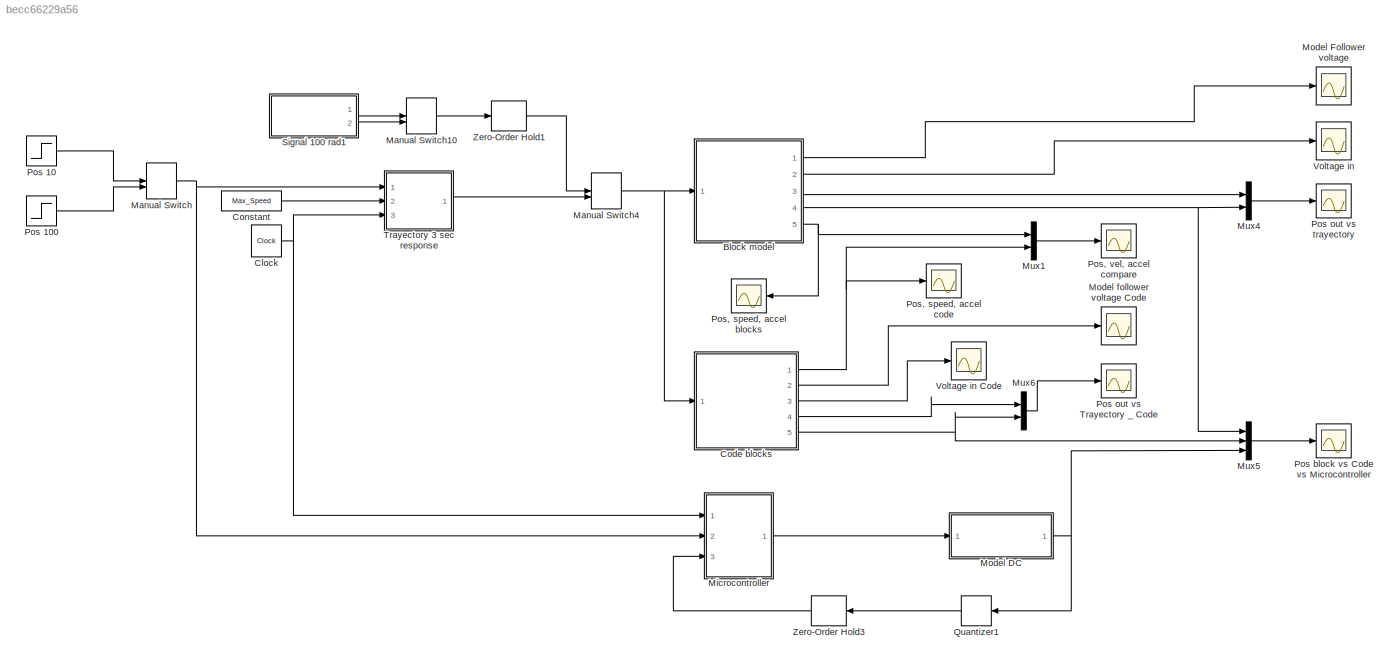
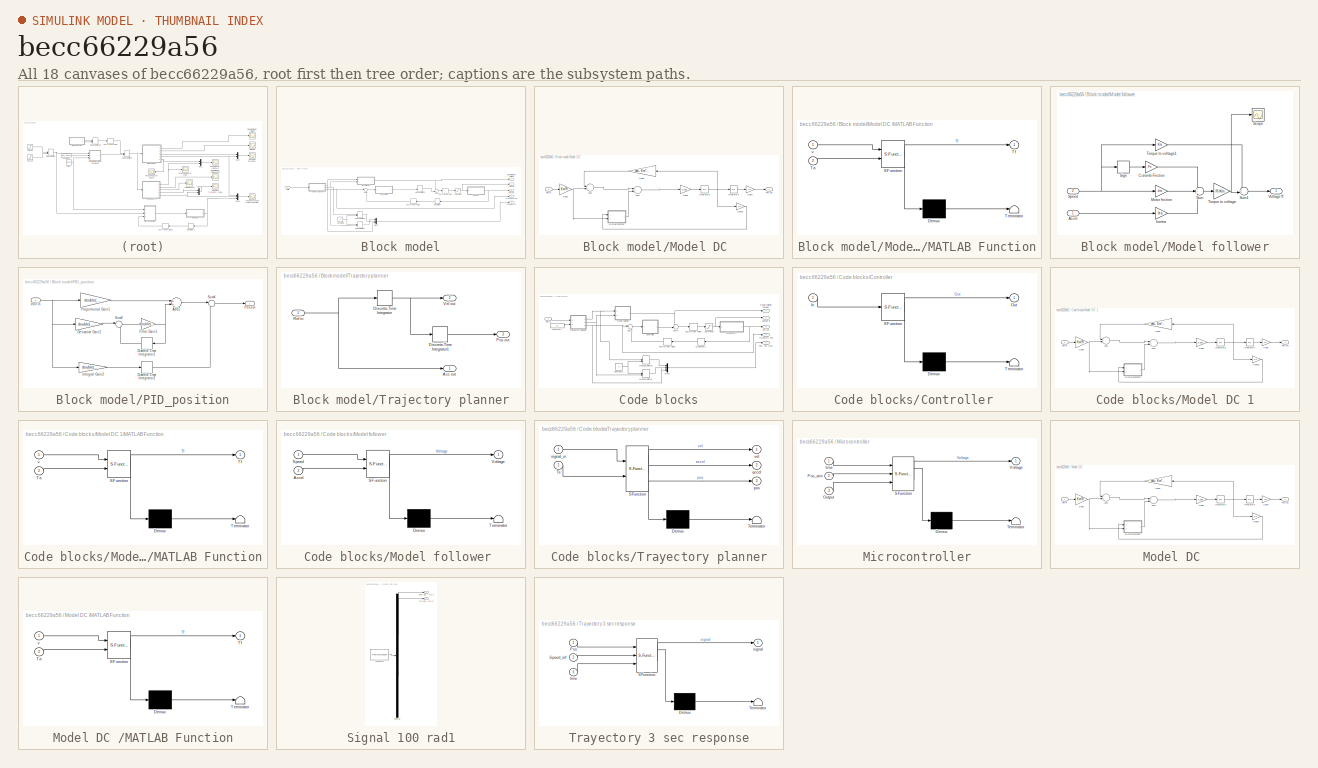
[diagram: thumbnail index - all 18 canvases of the model, root first then tree order]
MODEL slx_becc66229a56
KIND model
CONFIG AbsTol = auto
CONFIG EnableMultiTasking = off
CONFIG FixedStep = auto
CONFIG MaxStep = auto
CONFIG MinStep = auto
CONFIG RelTol = 1e-3
CONFIG SampleTimeConstraint = Unconstrained
CONFIG Solver = ode45
CONFIG SolverName = ode45
CONFIG StartTime = 0.0
CONFIG StopTime = 2
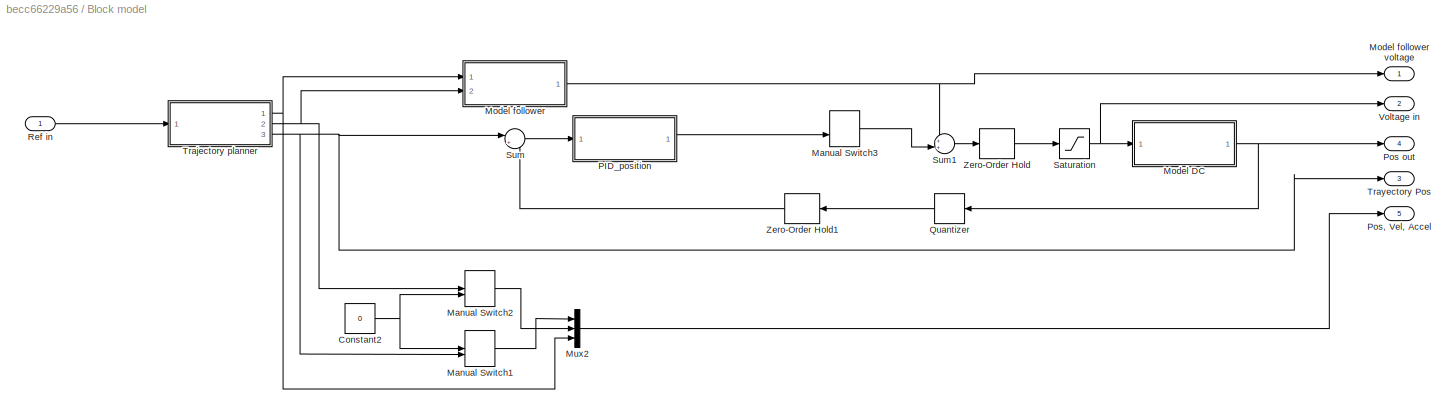
BLOCK [SubSystem] Block model
  Ports = [1, 5]
  RequestExecContextInheritance = off
  Variant = off
BLOCK [Constant] Block model/Constant2
  Value = 0
BLOCK [ManualSwitch] Block model/Manual Switch1
  CurrentSetting = 0
BLOCK [ManualSwitch] Block model/Manual Switch2
BLOCK [ManualSwitch] Block model/Manual Switch3
  CurrentSetting = 0
BLOCK [SubSystem] Block model/Model DC 
  Ports = [1, 1]
  RequestExecContextInheritance = off
  Variant = off
BLOCK [Sum] Block model/Model DC /Add2
  InputSameDT = off
  Inputs = -+
  OutDataTypeStr = Inherit: Inherit via internal rule
  Ports = [2, 1]
  SaturateOnIntegerOverflow = off
BLOCK [Sum] Block model/Model DC /Add3
  InputSameDT = off
  Inputs = +-
  OutDataTypeStr = Inherit: Inherit via internal rule
  Ports = [2, 1]
  SaturateOnIntegerOverflow = off
BLOCK [Gain] Block model/Model DC /Gain10
  Gain = 1/n
  OutDataTypeStr = Inherit: Inherit via internal rule
  ParamDataTypeStr = Inherit: Inherit via internal rule
  SaturateOnIntegerOverflow = off
BLOCK [Gain] Block model/Model DC /Gain2
  Gain = Km/R
  OutDataTypeStr = Inherit: Inherit via internal rule
  ParamDataTypeStr = Inherit: Inherit via internal rule
  SaturateOnIntegerOverflow = off
BLOCK [Gain] Block model/Model DC /Gain3
  Gain = dm+ Km*Kemf/R
  OutDataTypeStr = Inherit: Inherit via internal rule
  ParamDataTypeStr = Inherit: Inherit via internal rule
  SaturateOnIntegerOverflow = off
BLOCK [Gain] Block model/Model DC /Gain5
  Gain = 1/Jeq
  OutDataTypeStr = Inherit: Inherit via internal rule
  ParamDataTypeStr = Inherit: Inherit via internal rule
  SaturateOnIntegerOverflow = off
BLOCK [Gain] Block model/Model DC /Gain9
  Gain = 1/n
  OutDataTypeStr = Inherit: Inherit via internal rule
  ParamDataTypeStr = Inherit: Inherit via internal rule
  SaturateOnIntegerOverflow = off
BLOCK [Integrator] Block model/Model DC /Integrator3
  Ports = [1, 1]
BLOCK [Integrator] Block model/Model DC /Integrator4
  Ports = [1, 1]
BLOCK [SubSystem] Block model/Model DC /MATLAB Function
  ErrorFcn = Stateflow.Translate.translate
  PermitHierarchicalResolution = ExplicitOnly
  Ports = [2, 1]
  RequestExecContextInheritance = off
  SFBlockType = MATLAB Function
  TreatAsAtomicUnit = on
  Variant = off
BLOCK [Demux] Block model/Model DC /MATLAB Function/ Demux 
  Outputs = 1
  Ports = [1, 1]
BLOCK [S-Function] Block model/Model DC /MATLAB Function/ SFunction 
  EnableBusSupport = on
  FunctionName = sf_sfun
  PortCounts = [2 2]
  Ports = [2, 2]
  SFcnIsStateOwnerBlock = off
  SFunctionDeploymentMode = off
  Tag = Stateflow S-Function WorkshopB_1_Code 2
BLOCK [Terminator] Block model/Model DC /MATLAB Function/ Terminator 
BLOCK [Inport] Block model/Model DC /MATLAB Function/Ta
  IconDisplay = Port number
  Port = 2
BLOCK [Outport] Block model/Model DC /MATLAB Function/Tf
  IconDisplay = Port number
BLOCK [Inport] Block model/Model DC /MATLAB Function/v
  IconDisplay = Port number
BLOCK [Outport] Block model/Model DC /Pos out
  IconDisplay = Port number
BLOCK [Inport] Block model/Model DC /Volt in 
  IconDisplay = Port number
BLOCK [SubSystem] Block model/Model follower
  Ports = [2, 1]
  RequestExecContextInheritance = off
  Variant = off
BLOCK [Outport] Block model/Model follower voltage
  IconDisplay = Port number
BLOCK [Inport] Block model/Model follower/Accel
  IconDisplay = Port number
BLOCK [Gain] Block model/Model follower/Culomb Friction
  Gain = Fc
  OutDataTypeStr = Inherit: Inherit via internal rule
  ParamDataTypeStr = Inherit: Inherit via internal rule
  SaturateOnIntegerOverflow = off
BLOCK [Gain] Block model/Model follower/Inertia 
  Gain = Jeq
  OutDataTypeStr = Inherit: Inherit via internal rule
  ParamDataTypeStr = Inherit: Inherit via internal rule
  SaturateOnIntegerOverflow = off
BLOCK [Gain] Block model/Model follower/Motor friction
  Gain = dm
  OutDataTypeStr = Inherit: Inherit via internal rule
  ParamDataTypeStr = Inherit: Inherit via internal rule
  SaturateOnIntegerOverflow = off
BLOCK [Scope] Block model/Model follower/Scope
  NumInputPorts = 1
  Ports = [1]
  ScopeSpecificationString = Simulink.scopes.TimeScopeBlockCfg('CurrentConfiguration', extmgr.ConfigurationSet(extmgr.Configuration('Core','General UI',true),extmgr.Configuration('Core','Source UI',true),extmgr.Configuration('Sources','WiredSimulink',true,'DataLoggingVariableName','ScopeData5','DataLoggingLimitDataPoints',true,'DataLoggingSaveFormat','Array','DataLoggingDecimation','1','DataLoggingDecimateData',true),extmgr.C...<+899ch>
BLOCK [Signum] Block model/Model follower/Sign
BLOCK [Inport] Block model/Model follower/Speed
  IconDisplay = Port number
  Port = 2
BLOCK [Sum] Block model/Model follower/Sum
  IconShape = round
  InputSameDT = off
  Inputs = +++
  OutDataTypeStr = Inherit: Inherit via internal rule
  Ports = [3, 1]
  SaturateOnIntegerOverflow = off
BLOCK [Sum] Block model/Model follower/Sum1
  IconShape = round
  InputSameDT = off
  Inputs = ++|
  OutDataTypeStr = Inherit: Inherit via internal rule
  Ports = [2, 1]
  SaturateOnIntegerOverflow = off
BLOCK [Gain] Block model/Model follower/Torque to voltage
  Gain = R/Km
  OutDataTypeStr = Inherit: Inherit via internal rule
  ParamDataTypeStr = Inherit: Inherit via internal rule
  SaturateOnIntegerOverflow = off
BLOCK [Gain] Block model/Model follower/Torque to voltage1
  Gain = Km
  OutDataTypeStr = Inherit: Inherit via internal rule
  ParamDataTypeStr = Inherit: Inherit via internal rule
  SaturateOnIntegerOverflow = off
BLOCK [Outport] Block model/Model follower/Voltage ff
  IconDisplay = Port number
BLOCK [Mux] Block model/Mux2
  DisplayOption = bar
  Inputs = 3
  Ports = [3, 1]
BLOCK [SubSystem] Block model/PID_position
  Ports = [1, 1]
  RequestExecContextInheritance = off
  Variant = off
BLOCK [Sum] Block model/PID_position/Add2
  InputSameDT = off
  OutDataTypeStr = Inherit: Inherit via internal rule
  Ports = [2, 1]
  SaturateOnIntegerOverflow = off
BLOCK [Gain] Block model/PID_position/Derivative Gain2
  Gain = double(Dpos)
  OutDataTypeStr = Inherit: Inherit via internal rule
  ParamDataTypeStr = Inherit: Inherit via internal rule
  SaturateOnIntegerOverflow = off
BLOCK [DiscreteIntegrator] Block model/PID_position/Discrete-Time Integrator1
  ICPrevOutput = DiscIntNeverNeededParam
  ICPrevScaledInput = DiscIntNeverNeededParam
  InitialConditionSetting = State (most efficient)
  Ports = [1, 1]
  SampleTime = Ts
BLOCK [DiscreteIntegrator] Block model/PID_position/Discrete-Time Integrator2
  ICPrevOutput = DiscIntNeverNeededParam
  ICPrevScaledInput = DiscIntNeverNeededParam
  InitialConditionSetting = State (most efficient)
  Ports = [1, 1]
  SampleTime = Ts
BLOCK [Gain] Block model/PID_position/Filter Gain1
  Gain = double(Npos)
  OutDataTypeStr = Inherit: Inherit via internal rule
  ParamDataTypeStr = Inherit: Inherit via internal rule
  SaturateOnIntegerOverflow = off
BLOCK [Gain] Block model/PID_position/Integral Gain2
  Gain = double(Ipos)
  OutDataTypeStr = Inherit: Inherit via internal rule
  ParamDataTypeStr = Inherit: Inherit via internal rule
  SaturateOnIntegerOverflow = off
BLOCK [Outport] Block model/PID_position/Pos out
  IconDisplay = Port number
BLOCK [Gain] Block model/PID_position/Proportional Gain1
  Gain = double(Ppos)
  OutDataTypeStr = Inherit: Inherit via internal rule
  ParamDataTypeStr = Inherit: Inherit via internal rule
  SaturateOnIntegerOverflow = off
BLOCK [Sum] Block model/PID_position/Sum2
  IconShape = round
  InputSameDT = off
  Inputs = |+-
  OutDataTypeStr = Inherit: Inherit via internal rule
  Ports = [2, 1]
  SaturateOnIntegerOverflow = off
BLOCK [Sum] Block model/PID_position/Sum4
  IconShape = round
  InputSameDT = off
  Inputs = |++
  OutDataTypeStr = Inherit: Inherit via internal rule
  Ports = [2, 1]
  SaturateOnIntegerOverflow = off
BLOCK [Inport] Block model/PID_position/Volt in
  IconDisplay = Port number
BLOCK [Outport] Block model/Pos out 
  IconDisplay = Port number
  Port = 4
BLOCK [Outport] Block model/Pos, Vel, Accel 
  IconDisplay = Port number
  Port = 5
BLOCK [Quantizer] Block model/Quantizer
  QuantizationInterval = Pulses
  SampleTime = Ts
BLOCK [Inport] Block model/Ref in
  IconDisplay = Port number
BLOCK [Saturate] Block model/Saturation
  InputPortMap = u0
  LowerLimit = -24
  Ports = [1, 1]
  UpperLimit = 24
BLOCK [Sum] Block model/Sum
  IconShape = round
  InputSameDT = off
  Inputs = |+-
  OutDataTypeStr = Inherit: Inherit via internal rule
  Ports = [2, 1]
  SaturateOnIntegerOverflow = off
BLOCK [Sum] Block model/Sum1
  IconShape = round
  InputSameDT = off
  Inputs = ++|
  OutDataTypeStr = Inherit: Inherit via internal rule
  Ports = [2, 1]
  SaturateOnIntegerOverflow = off
BLOCK [SubSystem] Block model/Trajectory planner
  Ports = [1, 3]
  RequestExecContextInheritance = off
  Variant = off
BLOCK [Outport] Block model/Trajectory planner/Acc out 
  IconDisplay = Port number
BLOCK [DiscreteIntegrator] Block model/Trajectory planner/Discrete-Time Integrator
  ICPrevOutput = DiscIntNeverNeededParam
  ICPrevScaledInput = DiscIntNeverNeededParam
  InitialConditionSetting = State (most efficient)
  Ports = [1, 1]
  SampleTime = Ts
BLOCK [DiscreteIntegrator] Block model/Trajectory planner/Discrete-Time Integrator1
  ICPrevOutput = DiscIntNeverNeededParam
  ICPrevScaledInput = DiscIntNeverNeededParam
  InitialConditionSetting = State (most efficient)
  Ports = [1, 1]
  SampleTime = Ts
BLOCK [Outport] Block model/Trajectory planner/Pos out 
  IconDisplay = Port number
  Port = 3
BLOCK [Inport] Block model/Trajectory planner/Ref in
  IconDisplay = Port number
BLOCK [Outport] Block model/Trajectory planner/Vel out
  IconDisplay = Port number
  Port = 2
BLOCK [Outport] Block model/Trayectory Pos
  IconDisplay = Port number
  Port = 3
BLOCK [Outport] Block model/Voltage in
  IconDisplay = Port number
  Port = 2
BLOCK [ZeroOrderHold] Block model/Zero-Order Hold
  SampleTime = Ts
BLOCK [ZeroOrderHold] Block model/Zero-Order Hold1
  SampleTime = Ts
BLOCK [Clock] Clock
  Decimation = 1
  DisplayTime = on
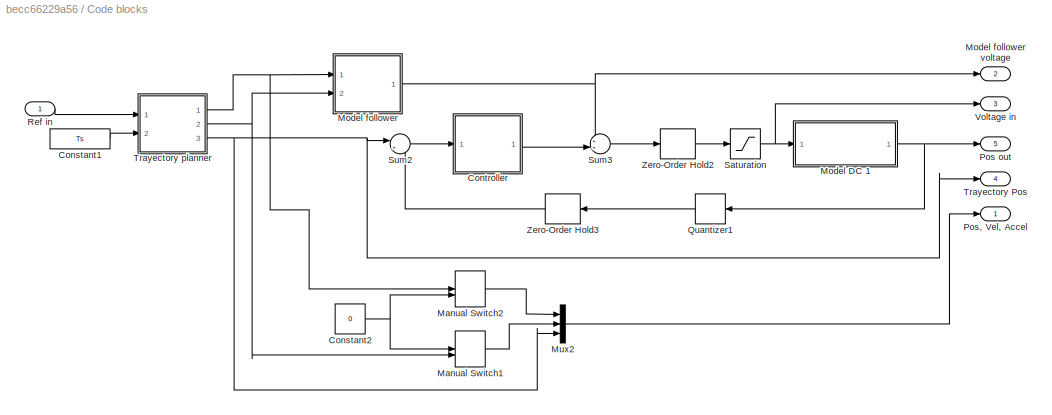
BLOCK [SubSystem] Code blocks
  Ports = [1, 5]
  RequestExecContextInheritance = off
  Variant = off
BLOCK [Constant] Code blocks/Constant1
  Value = Ts
BLOCK [Constant] Code blocks/Constant2
  Value = 0
BLOCK [SubSystem] Code blocks/Controller 
  ErrorFcn = Stateflow.Translate.translate
  PermitHierarchicalResolution = ExplicitOnly
  Ports = [1, 1]
  RequestExecContextInheritance = off
  SFBlockType = MATLAB Function
  SystemSampleTime = Ts
  TreatAsAtomicUnit = on
  Variant = off
BLOCK [Demux] Code blocks/Controller / Demux 
  Outputs = 1
  Ports = [1, 1]
BLOCK [S-Function] Code blocks/Controller / SFunction 
  EnableBusSupport = on
  FunctionName = sf_sfun
  PortCounts = [1 2]
  Ports = [1, 2]
  SFcnIsStateOwnerBlock = off
  SFunctionDeploymentMode = off
  Tag = Stateflow S-Function WorkshopB_1_Code 3
BLOCK [Terminator] Code blocks/Controller / Terminator 
BLOCK [Inport] Code blocks/Controller /In
  IconDisplay = Port number
BLOCK [Outport] Code blocks/Controller /Out
  IconDisplay = Port number
BLOCK [ManualSwitch] Code blocks/Manual Switch1
  CurrentSetting = 0
BLOCK [ManualSwitch] Code blocks/Manual Switch2
BLOCK [SubSystem] Code blocks/Model DC 1
  Ports = [1, 1]
  RequestExecContextInheritance = off
  Variant = off
BLOCK [Sum] Code blocks/Model DC 1/Add2
  InputSameDT = off
  Inputs = -+
  OutDataTypeStr = Inherit: Inherit via internal rule
  Ports = [2, 1]
  SaturateOnIntegerOverflow = off
BLOCK [Sum] Code blocks/Model DC 1/Add3
  InputSameDT = off
  Inputs = +-
  OutDataTypeStr = Inherit: Inherit via internal rule
  Ports = [2, 1]
  SaturateOnIntegerOverflow = off
BLOCK [Gain] Code blocks/Model DC 1/Gain10
  Gain = 1/n
  OutDataTypeStr = Inherit: Inherit via internal rule
  ParamDataTypeStr = Inherit: Inherit via internal rule
  SaturateOnIntegerOverflow = off
BLOCK [Gain] Code blocks/Model DC 1/Gain2
  Gain = Km/R
  OutDataTypeStr = Inherit: Inherit via internal rule
  ParamDataTypeStr = Inherit: Inherit via internal rule
  SaturateOnIntegerOverflow = off
BLOCK [Gain] Code blocks/Model DC 1/Gain3
  Gain = dm+ Km*Kemf/R
  OutDataTypeStr = Inherit: Inherit via internal rule
  ParamDataTypeStr = Inherit: Inherit via internal rule
  SaturateOnIntegerOverflow = off
BLOCK [Gain] Code blocks/Model DC 1/Gain5
  Gain = 1/Jeq
  OutDataTypeStr = Inherit: Inherit via internal rule
  ParamDataTypeStr = Inherit: Inherit via internal rule
  SaturateOnIntegerOverflow = off
BLOCK [Gain] Code blocks/Model DC 1/Gain9
  Gain = 1/n
  OutDataTypeStr = Inherit: Inherit via internal rule
  ParamDataTypeStr = Inherit: Inherit via internal rule
  SaturateOnIntegerOverflow = off
BLOCK [Integrator] Code blocks/Model DC 1/Integrator3
  Ports = [1, 1]
BLOCK [Integrator] Code blocks/Model DC 1/Integrator4
  Ports = [1, 1]
BLOCK [SubSystem] Code blocks/Model DC 1/MATLAB Function
  ErrorFcn = Stateflow.Translate.translate
  PermitHierarchicalResolution = ExplicitOnly
  Ports = [2, 1]
  RequestExecContextInheritance = off
  SFBlockType = MATLAB Function
  TreatAsAtomicUnit = on
  Variant = off
BLOCK [Demux] Code blocks/Model DC 1/MATLAB Function/ Demux 
  Outputs = 1
  Ports = [1, 1]
BLOCK [S-Function] Code blocks/Model DC 1/MATLAB Function/ SFunction 
  EnableBusSupport = on
  FunctionName = sf_sfun
  PortCounts = [2 2]
  Ports = [2, 2]
  SFcnIsStateOwnerBlock = off
  SFunctionDeploymentMode = off
  Tag = Stateflow S-Function WorkshopB_1_Code 8
BLOCK [Terminator] Code blocks/Model DC 1/MATLAB Function/ Terminator 
BLOCK [Inport] Code blocks/Model DC 1/MATLAB Function/Ta
  IconDisplay = Port number
  Port = 2
BLOCK [Outport] Code blocks/Model DC 1/MATLAB Function/Tf
  IconDisplay = Port number
BLOCK [Inport] Code blocks/Model DC 1/MATLAB Function/v
  IconDisplay = Port number
BLOCK [Outport] Code blocks/Model DC 1/Pos out
  IconDisplay = Port number
BLOCK [Inport] Code blocks/Model DC 1/Volt in 
  IconDisplay = Port number
BLOCK [SubSystem] Code blocks/Model follower 
  ErrorFcn = Stateflow.Translate.translate
  PermitHierarchicalResolution = ExplicitOnly
  Ports = [2, 1]
  RequestExecContextInheritance = off
  SFBlockType = MATLAB Function
  SystemSampleTime = Ts
  TreatAsAtomicUnit = on
  Variant = off
BLOCK [Demux] Code blocks/Model follower / Demux 
  Outputs = 1
  Ports = [1, 1]
BLOCK [S-Function] Code blocks/Model follower / SFunction 
  EnableBusSupport = on
  FunctionName = sf_sfun
  PortCounts = [2 2]
  Ports = [2, 2]
  SFcnIsStateOwnerBlock = off
  SFunctionDeploymentMode = off
  Tag = Stateflow S-Function WorkshopB_1_Code 9
BLOCK [Terminator] Code blocks/Model follower / Terminator 
BLOCK [Inport] Code blocks/Model follower /Accel
  IconDisplay = Port number
  Port = 2
BLOCK [Inport] Code blocks/Model follower /Speed
  IconDisplay = Port number
BLOCK [Outport] Code blocks/Model follower /Voltage
  IconDisplay = Port number
BLOCK [Outport] Code blocks/Model follower voltage
  IconDisplay = Port number
  Port = 2
BLOCK [Mux] Code blocks/Mux2
  DisplayOption = bar
  Inputs = 3
  Ports = [3, 1]
BLOCK [Outport] Code blocks/Pos out 
  IconDisplay = Port number
  Port = 5
BLOCK [Outport] Code blocks/Pos, Vel, Accel 
  IconDisplay = Port number
BLOCK [Quantizer] Code blocks/Quantizer1
  QuantizationInterval = Pulses
  SampleTime = Ts
BLOCK [Inport] Code blocks/Ref in
  IconDisplay = Port number
BLOCK [Saturate] Code blocks/Saturation
  InputPortMap = u0
  LowerLimit = -24
  Ports = [1, 1]
  UpperLimit = 24
BLOCK [Sum] Code blocks/Sum2
  IconShape = round
  InputSameDT = off
  Inputs = |+-
  OutDataTypeStr = Inherit: Inherit via internal rule
  Ports = [2, 1]
  SaturateOnIntegerOverflow = off
BLOCK [Sum] Code blocks/Sum3
  IconShape = round
  InputSameDT = off
  Inputs = ++|
  OutDataTypeStr = Inherit: Inherit via internal rule
  Ports = [2, 1]
  SaturateOnIntegerOverflow = off
BLOCK [Outport] Code blocks/Trayectory Pos
  IconDisplay = Port number
  Port = 4
BLOCK [SubSystem] Code blocks/Trayectory planner
  ErrorFcn = Stateflow.Translate.translate
  PermitHierarchicalResolution = ExplicitOnly
  Ports = [2, 3]
  RequestExecContextInheritance = off
  SFBlockType = MATLAB Function
  SystemSampleTime = Ts
  TreatAsAtomicUnit = on
  Variant = off
BLOCK [Demux] Code blocks/Trayectory planner/ Demux 
  Outputs = 1
  Ports = [1, 1]
BLOCK [S-Function] Code blocks/Trayectory planner/ SFunction 
  EnableBusSupport = on
  FunctionName = sf_sfun
  PortCounts = [2 4]
  Ports = [2, 4]
  SFcnIsStateOwnerBlock = off
  SFunctionDeploymentMode = off
  Tag = Stateflow S-Function WorkshopB_1_Code 10
BLOCK [Terminator] Code blocks/Trayectory planner/ Terminator 
BLOCK [Inport] Code blocks/Trayectory planner/Ts
  IconDisplay = Port number
  Port = 2
BLOCK [Outport] Code blocks/Trayectory planner/accel
  IconDisplay = Port number
  Port = 2
BLOCK [Outport] Code blocks/Trayectory planner/pos
  IconDisplay = Port number
  Port = 3
BLOCK [Inport] Code blocks/Trayectory planner/signal_in
  IconDisplay = Port number
BLOCK [Outport] Code blocks/Trayectory planner/vel
  IconDisplay = Port number
BLOCK [Outport] Code blocks/Voltage in
  IconDisplay = Port number
  Port = 3
BLOCK [ZeroOrderHold] Code blocks/Zero-Order Hold2
  SampleTime = Ts
BLOCK [ZeroOrderHold] Code blocks/Zero-Order Hold3
  SampleTime = Ts
BLOCK [Constant] Constant
  Value = Max_Speed
BLOCK [ManualSwitch] Manual Switch
BLOCK [ManualSwitch] Manual Switch10
  CurrentSetting = 0
BLOCK [ManualSwitch] Manual Switch4
BLOCK [SubSystem] Microcontroller
  ErrorFcn = Stateflow.Translate.translate
  PermitHierarchicalResolution = ExplicitOnly
  Ports = [3, 1]
  RequestExecContextInheritance = off
  SFBlockType = MATLAB Function
  SystemSampleTime = Ts
  TreatAsAtomicUnit = on
  Variant = off
BLOCK [Demux] Microcontroller/ Demux 
  Outputs = 1
  Ports = [1, 1]
BLOCK [S-Function] Microcontroller/ SFunction 
  EnableBusSupport = on
  FunctionName = sf_sfun
  PortCounts = [3 2]
  Ports = [3, 2]
  SFcnIsStateOwnerBlock = off
  SFunctionDeploymentMode = off
  Tag = Stateflow S-Function WorkshopB_1_Code 1
BLOCK [Terminator] Microcontroller/ Terminator 
BLOCK [Inport] Microcontroller/Output
  IconDisplay = Port number
  Port = 3
BLOCK [Inport] Microcontroller/Pos_aim
  IconDisplay = Port number
  Port = 2
BLOCK [Outport] Microcontroller/Voltage
  IconDisplay = Port number
BLOCK [Inport] Microcontroller/time
  IconDisplay = Port number
BLOCK [SubSystem] Model DC 
  Ports = [1, 1]
  RequestExecContextInheritance = off
  Variant = off
BLOCK [Sum] Model DC /Add2
  InputSameDT = off
  Inputs = -+
  OutDataTypeStr = Inherit: Inherit via internal rule
  Ports = [2, 1]
  SaturateOnIntegerOverflow = off
BLOCK [Sum] Model DC /Add3
  InputSameDT = off
  Inputs = +-
  OutDataTypeStr = Inherit: Inherit via internal rule
  Ports = [2, 1]
  SaturateOnIntegerOverflow = off
BLOCK [Gain] Model DC /Gain10
  Gain = 1/n
  OutDataTypeStr = Inherit: Inherit via internal rule
  ParamDataTypeStr = Inherit: Inherit via internal rule
  SaturateOnIntegerOverflow = off
BLOCK [Gain] Model DC /Gain2
  Gain = Km/R
  OutDataTypeStr = Inherit: Inherit via internal rule
  ParamDataTypeStr = Inherit: Inherit via internal rule
  SaturateOnIntegerOverflow = off
BLOCK [Gain] Model DC /Gain3
  Gain = dm+ Km*Kemf/R
  OutDataTypeStr = Inherit: Inherit via internal rule
  ParamDataTypeStr = Inherit: Inherit via internal rule
  SaturateOnIntegerOverflow = off
BLOCK [Gain] Model DC /Gain5
  Gain = 1/Jeq
  OutDataTypeStr = Inherit: Inherit via internal rule
  ParamDataTypeStr = Inherit: Inherit via internal rule
  SaturateOnIntegerOverflow = off
BLOCK [Gain] Model DC /Gain9
  Gain = 1/n
  OutDataTypeStr = Inherit: Inherit via internal rule
  ParamDataTypeStr = Inherit: Inherit via internal rule
  SaturateOnIntegerOverflow = off
BLOCK [Integrator] Model DC /Integrator3
  Ports = [1, 1]
BLOCK [Integrator] Model DC /Integrator4
  Ports = [1, 1]
BLOCK [SubSystem] Model DC /MATLAB Function
  ErrorFcn = Stateflow.Translate.translate
  PermitHierarchicalResolution = ExplicitOnly
  Ports = [2, 1]
  RequestExecContextInheritance = off
  SFBlockType = MATLAB Function
  TreatAsAtomicUnit = on
  Variant = off
BLOCK [Demux] Model DC /MATLAB Function/ Demux 
  Outputs = 1
  Ports = [1, 1]
BLOCK [S-Function] Model DC /MATLAB Function/ SFunction 
  EnableBusSupport = on
  FunctionName = sf_sfun
  PortCounts = [2 2]
  Ports = [2, 2]
  SFcnIsStateOwnerBlock = off
  SFunctionDeploymentMode = off
  Tag = Stateflow S-Function WorkshopB_1_Code 6
BLOCK [Terminator] Model DC /MATLAB Function/ Terminator 
BLOCK [Inport] Model DC /MATLAB Function/Ta
  IconDisplay = Port number
  Port = 2
BLOCK [Outport] Model DC /MATLAB Function/Tf
  IconDisplay = Port number
BLOCK [Inport] Model DC /MATLAB Function/v
  IconDisplay = Port number
BLOCK [Outport] Model DC /Pos out
  IconDisplay = Port number
BLOCK [Inport] Model DC /Volt in 
  IconDisplay = Port number
BLOCK [Scope] Model Follower voltage
  NumInputPorts = 1
  Ports = [1]
  ScopeSpecificationString = Simulink.scopes.TimeScopeBlockCfg('CurrentConfiguration', extmgr.ConfigurationSet(extmgr.Configuration('Core','General UI',true),extmgr.Configuration('Core','Source UI',true),extmgr.Configuration('Sources','WiredSimulink',true,'DataLoggingVariableName','ScopeData2','DataLoggingLimitDataPoints',true,'DataLoggingSaveFormat','Array','DataLoggingDecimation','1','DataLoggingDecimateData',true),extmgr.C...<+1670ch>
BLOCK [Scope] Model follower voltage Code
  NumInputPorts = 1
  Ports = [1]
  ScopeSpecificationString = C++SS(StrPVP('SaveName','ScopeData3'),StrPVP('LimitDataPoints','on'),StrPVP('DataFormat','Array'),StrPVP('Decimation','1'),StrPVP('BlockParamSampleInput','off'))
BLOCK [Mux] Mux1
  DisplayOption = bar
  Inputs = 2
  Ports = [2, 1]
BLOCK [Mux] Mux4
  DisplayOption = bar
  Inputs = 2
  Ports = [2, 1]
BLOCK [Mux] Mux5
  DisplayOption = bar
  Inputs = 3
  Ports = [3, 1]
BLOCK [Mux] Mux6
  DisplayOption = bar
  Inputs = 2
  Ports = [2, 1]
BLOCK [Step] Pos 10
  After = 10
  SampleTime = 0
  Time = 0
BLOCK [Step] Pos 100
  After = 100
  SampleTime = 0
  Time = 0
BLOCK [Scope] Pos block vs Code vs Microcontroller 
  NumInputPorts = 1
  Ports = [1]
  ScopeSpecificationString = Simulink.scopes.TimeScopeBlockCfg('CurrentConfiguration', extmgr.ConfigurationSet(extmgr.Configuration('Core','General UI',true),extmgr.Configuration('Core','Source UI',true),extmgr.Configuration('Sources','WiredSimulink',true,'DataLoggingVariableName','ScopeData1'),extmgr.Configuration('Visuals','Time Domain',true,'SerializedDisplays',{struct('MinYLimReal','-1.25023','MaxYLimReal','11.25205','YLa...<+1480ch>
BLOCK [Scope] Pos out vs Trayectory _ Code 
  NumInputPorts = 1
  Ports = [1]
  ScopeSpecificationString = Simulink.scopes.TimeScopeBlockCfg('CurrentConfiguration', extmgr.ConfigurationSet(extmgr.Configuration('Core','General UI',true),extmgr.Configuration('Core','Source UI',true),extmgr.Configuration('Sources','WiredSimulink',true,'DataLoggingVariableName','ScopeData2'),extmgr.Configuration('Visuals','Time Domain',true,'SerializedDisplays',{struct('MinYLimReal','-1.25023','MaxYLimReal','11.25205','YLa...<+1469ch>
BLOCK [Scope] Pos out vs trayectory
  NumInputPorts = 1
  Ports = [1]
  ScopeSpecificationString = Simulink.scopes.TimeScopeBlockCfg('CurrentConfiguration', extmgr.ConfigurationSet(extmgr.Configuration('Core','General UI',true),extmgr.Configuration('Core','Source UI',true),extmgr.Configuration('Sources','WiredSimulink',true,'DataLoggingVariableName','ScopeData3','DataLoggingLimitDataPoints',true,'DataLoggingSaveFormat','Array','DataLoggingDecimation','1','DataLoggingDecimateData',true),extmgr.C...<+1764ch>
BLOCK [Scope] Pos, speed, accel blocks 
  NumInputPorts = 1
  Ports = [1]
  ScopeSpecificationString = Simulink.scopes.TimeScopeBlockCfg('CurrentConfiguration', extmgr.ConfigurationSet(extmgr.Configuration('Core','General UI',true,'FigureColor',[1 1 1]),extmgr.Configuration('Core','Source UI',true),extmgr.Configuration('Sources','WiredSimulink',true,'DataLoggingVariableName','ScopeData1','DataLoggingLimitDataPoints',true,'DataLoggingSaveFormat','Array','DataLoggingDecimation','1','DataLoggingDecima...<+2051ch>
BLOCK [Scope] Pos, speed, accel code
  NumInputPorts = 1
  Ports = [1]
  ScopeSpecificationString = Simulink.scopes.TimeScopeBlockCfg('CurrentConfiguration', extmgr.ConfigurationSet(extmgr.Configuration('Core','General UI',true),extmgr.Configuration('Core','Source UI',true),extmgr.Configuration('Sources','WiredSimulink',true,'DataLoggingVariableName','ScopeData2','DataLoggingLimitDataPoints',true,'DataLoggingSaveFormat','Array','DataLoggingDecimation','1','DataLoggingDecimateData',true),extmgr.C...<+1840ch>
BLOCK [Scope] Pos, vel, accel compare
  NumInputPorts = 1
  Ports = [1]
  ScopeSpecificationString = Simulink.scopes.TimeScopeBlockCfg('CurrentConfiguration', extmgr.ConfigurationSet(extmgr.Configuration('Core','General UI',true,'FigureColor',[1 1 1]),extmgr.Configuration('Core','Source UI',true),extmgr.Configuration('Sources','WiredSimulink',true,'DataLoggingVariableName','ScopeData5','DataLoggingLimitDataPoints',true,'DataLoggingSaveFormat','Array','DataLoggingDecimation','1','DataLoggingDecima...<+2603ch>
BLOCK [Quantizer] Quantizer1
  QuantizationInterval = Pulses
  SampleTime = Ts
BLOCK [SubSystem] Signal 100 rad1
  ClipboardFcn = sigbuilder_block('clipboard');
  CloseFcn = sigbuilder_block('close');
  ContinueFcn = sigbuilder_block('continue');
  CopyFcn = sigbuilder_block('copy');
  DeleteFcn = sigbuilder_block('delete');
  LoadFcn = sigbuilder_block('load');
  MaskHideContents = on
  ModelCloseFcn = sigbuilder_block('modelClose');
  NameChangeFcn = sigbuilder_block('namechange');
  OpenFcn = sigbuilder_block('open',[437.6 199.2 550.4 400 ]);
  PauseFcn = sigbuilder_block('pause');
  Ports = [0, 2]
  PreSaveFcn = sigbuilder_block('preSave');
  RequestExecContextInheritance = off
  StartFcn = sigbuilder_block('start');
  StopFcn = sigbuilder_block('stop');
  Tag = STV Subsys
  Variant = off
BLOCK [Outport] Signal 100 rad1/10 rad - 0.5 s
  IconDisplay = Port number
  Port = 2
  Tag = STV Outport
BLOCK [Outport] Signal 100 rad1/100 rad - 0.5 s
  IconDisplay = Port number
  Tag = STV Outport
BLOCK [Demux] Signal 100 rad1/Demux
  Outputs = 2
  Ports = [1, 2]
  Tag = STV Demux
BLOCK [FromWorkspace] Signal 100 rad1/FromWs
  SampleTime = 0
  Tag = STV FromWs
  VariableName = tuvar
  ZeroCross = on
BLOCK [SubSystem] Trayectory 3 sec response
  ErrorFcn = Stateflow.Translate.translate
  PermitHierarchicalResolution = ExplicitOnly
  Ports = [3, 1]
  RequestExecContextInheritance = off
  SFBlockType = MATLAB Function
  SystemSampleTime = 1e-3
  TreatAsAtomicUnit = on
  Variant = off
BLOCK [Demux] Trayectory 3 sec response/ Demux 
  Outputs = 1
  Ports = [1, 1]
BLOCK [S-Function] Trayectory 3 sec response/ SFunction 
  EnableBusSupport = on
  FunctionName = sf_sfun
  PortCounts = [3 2]
  Ports = [3, 2]
  SFcnIsStateOwnerBlock = off
  SFunctionDeploymentMode = off
  Tag = Stateflow S-Function WorkshopB_1_Code 4
BLOCK [Terminator] Trayectory 3 sec response/ Terminator 
BLOCK [Inport] Trayectory 3 sec response/Pos
  IconDisplay = Port number
BLOCK [Inport] Trayectory 3 sec response/Speed_ref
  IconDisplay = Port number
  Port = 2
BLOCK [Outport] Trayectory 3 sec response/signal
  IconDisplay = Port number
BLOCK [Inport] Trayectory 3 sec response/time
  IconDisplay = Port number
  Port = 3
BLOCK [Scope] Voltage in
  NumInputPorts = 1
  Ports = [1]
  ScopeSpecificationString = Simulink.scopes.TimeScopeBlockCfg('CurrentConfiguration', extmgr.ConfigurationSet(extmgr.Configuration('Core','General UI',true),extmgr.Configuration('Core','Source UI',true),extmgr.Configuration('Sources','WiredSimulink',true,'DataLoggingVariableName','ScopeData4','DataLoggingLimitDataPoints',true,'DataLoggingSaveFormat','Array','DataLoggingDecimation','1','DataLoggingDecimateData',true),extmgr.C...<+1702ch>
BLOCK [Scope] Voltage in Code 
  NumInputPorts = 1
  Ports = [1]
  ScopeSpecificationString = C++SS(StrPVP('SaveName','ScopeData4'),StrPVP('LimitDataPoints','on'),StrPVP('DataFormat','Array'),StrPVP('Decimation','1'),StrPVP('BlockParamSampleInput','off'))
BLOCK [ZeroOrderHold] Zero-Order Hold1
  SampleTime = Ts
BLOCK [ZeroOrderHold] Zero-Order Hold3
  SampleTime = Ts
NET Block model/Constant2:1 -> Block model/Manual Switch1:1, Block model/Manual Switch2:2
LINE Block model/Manual Switch1:1 -> Block model/Mux2:1
LINE Block model/Manual Switch2:1 -> Block model/Mux2:2
LINE Block model/Manual Switch3:1 -> Block model/Sum1:2
LINE Block model/Model DC /Add2:1 -> Block model/Model DC /Add3:1
LINE Block model/Model DC /Add3:1 -> Block model/Model DC /Gain5:1
LINE Block model/Model DC /Gain10:1 -> Block model/Model DC /MATLAB Function:1
NET Block model/Model DC /Gain2:1 -> Block model/Model DC /Add2:2, Block model/Model DC /MATLAB Function:2
LINE Block model/Model DC /Gain3:1 -> Block model/Model DC /Add2:1
LINE Block model/Model DC /Gain5:1 -> Block model/Model DC /Integrator3:1
LINE Block model/Model DC /Gain9:1 -> Block model/Model DC /Pos out:1
NET Block model/Model DC /Integrator3:1 -> Block model/Model DC /Gain10:1, Block model/Model DC /Gain3:1, Block model/Model DC /Integrator4:1
LINE Block model/Model DC /Integrator4:1 -> Block model/Model DC /Gain9:1
LINE Block model/Model DC /MATLAB Function:1 -> Block model/Model DC /Add3:2
LINE Block model/Model DC /Volt in :1 -> Block model/Model DC /Gain2:1
NET Block model/Model DC :1 -> Block model/Pos out :1, Block model/Quantizer:1
LINE Block model/Model follower/Accel:1 -> Block model/Model follower/Inertia :1
LINE Block model/Model follower/Culomb Friction:1 -> Block model/Model follower/Sum:1
LINE Block model/Model follower/Inertia :1 -> Block model/Model follower/Sum:3
LINE Block model/Model follower/Motor friction:1 -> Block model/Model follower/Sum:2
LINE Block model/Model follower/Sign:1 -> Block model/Model follower/Culomb Friction:1
NET Block model/Model follower/Speed:1 -> Block model/Model follower/Motor friction:1, Block model/Model follower/Sign:1, Block model/Model follower/Torque to voltage1:1
LINE Block model/Model follower/Sum1:1 -> Block model/Model follower/Voltage ff:1
LINE Block model/Model follower/Sum:1 -> Block model/Model follower/Torque to voltage:1
LINE Block model/Model follower/Torque to voltage1:1 -> Block model/Model follower/Sum1:1
NET Block model/Model follower/Torque to voltage:1 -> Block model/Model follower/Scope:1, Block model/Model follower/Sum1:2
NET Block model/Model follower:1 -> Block model/Model follower voltage:1, Block model/Sum1:1
LINE Block model/Mux2:1 -> Block model/Pos, Vel, Accel :1
LINE Block model/PID_position/Add2:1 -> Block model/PID_position/Sum4:1
LINE Block model/PID_position/Derivative Gain2:1 -> Block model/PID_position/Sum2:1
LINE Block model/PID_position/Discrete-Time Integrator1:1 -> Block model/PID_position/Sum2:2
LINE Block model/PID_position/Discrete-Time Integrator2:1 -> Block model/PID_position/Sum4:2
NET Block model/PID_position/Filter Gain1:1 -> Block model/PID_position/Add2:2, Block model/PID_position/Discrete-Time Integrator1:1
LINE Block model/PID_position/Integral Gain2:1 -> Block model/PID_position/Discrete-Time Integrator2:1
LINE Block model/PID_position/Proportional Gain1:1 -> Block model/PID_position/Add2:1
LINE Block model/PID_position/Sum2:1 -> Block model/PID_position/Filter Gain1:1
LINE Block model/PID_position/Sum4:1 -> Block model/PID_position/Pos out:1
NET Block model/PID_position/Volt in:1 -> Block model/PID_position/Derivative Gain2:1, Block model/PID_position/Integral Gain2:1, Block model/PID_position/Proportional Gain1:1
LINE Block model/PID_position:1 -> Block model/Manual Switch3:2
LINE Block model/Quantizer:1 -> Block model/Zero-Order Hold1:1
LINE Block model/Ref in:1 -> Block model/Trajectory planner:1
NET Block model/Saturation:1 -> Block model/Model DC :1, Block model/Voltage in:1
LINE Block model/Sum1:1 -> Block model/Zero-Order Hold:1
LINE Block model/Sum:1 -> Block model/PID_position:1
LINE Block model/Trajectory planner/Discrete-Time Integrator1:1 -> Block model/Trajectory planner/Pos out :1
NET Block model/Trajectory planner/Discrete-Time Integrator:1 -> Block model/Trajectory planner/Discrete-Time Integrator1:1, Block model/Trajectory planner/Vel out:1
NET Block model/Trajectory planner/Ref in:1 -> Block model/Trajectory planner/Acc out :1, Block model/Trajectory planner/Discrete-Time Integrator:1
NET Block model/Trajectory planner:1 -> Block model/Model follower:1, Block model/Mux2:3
NET Block model/Trajectory planner:2 -> Block model/Manual Switch2:1, Block model/Model follower:2
NET Block model/Trajectory planner:3 -> Block model/Manual Switch1:2, Block model/Sum:1, Block model/Trayectory Pos:1
LINE Block model/Zero-Order Hold1:1 -> Block model/Sum:2
LINE Block model/Zero-Order Hold:1 -> Block model/Saturation:1
LINE Block model:1 -> Model Follower voltage:1
LINE Block model:2 -> Voltage in:1
LINE Block model:3 -> Mux4:1
NET Block model:4 -> Mux4:2, Mux5:1
NET Block model:5 -> Mux1:1, Pos, speed, accel blocks :1
NET Clock:1 -> Microcontroller:1, Trayectory 3 sec response:3
LINE Code blocks/Constant1:1 -> Code blocks/Trayectory planner:2
NET Code blocks/Constant2:1 -> Code blocks/Manual Switch1:1, Code blocks/Manual Switch2:2
LINE Code blocks/Controller :1 -> Code blocks/Sum3:2
LINE Code blocks/Manual Switch1:1 -> Code blocks/Mux2:2
LINE Code blocks/Manual Switch2:1 -> Code blocks/Mux2:1
LINE Code blocks/Model DC 1/Add2:1 -> Code blocks/Model DC 1/Add3:1
LINE Code blocks/Model DC 1/Add3:1 -> Code blocks/Model DC 1/Gain5:1
LINE Code blocks/Model DC 1/Gain10:1 -> Code blocks/Model DC 1/MATLAB Function:1
NET Code blocks/Model DC 1/Gain2:1 -> Code blocks/Model DC 1/Add2:2, Code blocks/Model DC 1/MATLAB Function:2
LINE Code blocks/Model DC 1/Gain3:1 -> Code blocks/Model DC 1/Add2:1
LINE Code blocks/Model DC 1/Gain5:1 -> Code blocks/Model DC 1/Integrator3:1
LINE Code blocks/Model DC 1/Gain9:1 -> Code blocks/Model DC 1/Pos out:1
NET Code blocks/Model DC 1/Integrator3:1 -> Code blocks/Model DC 1/Gain10:1, Code blocks/Model DC 1/Gain3:1, Code blocks/Model DC 1/Integrator4:1
LINE Code blocks/Model DC 1/Integrator4:1 -> Code blocks/Model DC 1/Gain9:1
LINE Code blocks/Model DC 1/MATLAB Function:1 -> Code blocks/Model DC 1/Add3:2
LINE Code blocks/Model DC 1/Volt in :1 -> Code blocks/Model DC 1/Gain2:1
NET Code blocks/Model DC 1:1 -> Code blocks/Pos out :1, Code blocks/Quantizer1:1
NET Code blocks/Model follower :1 -> Code blocks/Model follower voltage:1, Code blocks/Sum3:1
LINE Code blocks/Mux2:1 -> Code blocks/Pos, Vel, Accel :1
LINE Code blocks/Quantizer1:1 -> Code blocks/Zero-Order Hold3:1
LINE Code blocks/Ref in:1 -> Code blocks/Trayectory planner:1
NET Code blocks/Saturation:1 -> Code blocks/Model DC 1:1, Code blocks/Voltage in:1
LINE Code blocks/Sum2:1 -> Code blocks/Controller :1
LINE Code blocks/Sum3:1 -> Code blocks/Zero-Order Hold2:1
NET Code blocks/Trayectory planner:1 -> Code blocks/Manual Switch2:1, Code blocks/Model follower :1
NET Code blocks/Trayectory planner:2 -> Code blocks/Manual Switch1:2, Code blocks/Model follower :2
NET Code blocks/Trayectory planner:3 -> Code blocks/Mux2:3, Code blocks/Sum2:1, Code blocks/Trayectory Pos:1
LINE Code blocks/Zero-Order Hold2:1 -> Code blocks/Saturation:1
LINE Code blocks/Zero-Order Hold3:1 -> Code blocks/Sum2:2
NET Code blocks:1 -> Mux1:2, Pos, speed, accel code:1
LINE Code blocks:2 -> Model follower voltage Code:1
LINE Code blocks:3 -> Voltage in Code :1
LINE Code blocks:4 -> Mux6:1
NET Code blocks:5 -> Mux5:2, Mux6:2
LINE Constant:1 -> Trayectory 3 sec response:2
LINE Manual Switch10:1 -> Zero-Order Hold1:1
NET Manual Switch4:1 -> Block model:1, Code blocks:1
NET Manual Switch:1 -> Microcontroller:2, Trayectory 3 sec response:1
LINE Microcontroller:1 -> Model DC :1
LINE Model DC /Add2:1 -> Model DC /Add3:1
LINE Model DC /Add3:1 -> Model DC /Gain5:1
LINE Model DC /Gain10:1 -> Model DC /MATLAB Function:1
NET Model DC /Gain2:1 -> Model DC /Add2:2, Model DC /MATLAB Function:2
LINE Model DC /Gain3:1 -> Model DC /Add2:1
LINE Model DC /Gain5:1 -> Model DC /Integrator3:1
LINE Model DC /Gain9:1 -> Model DC /Pos out:1
NET Model DC /Integrator3:1 -> Model DC /Gain10:1, Model DC /Gain3:1, Model DC /Integrator4:1
LINE Model DC /Integrator4:1 -> Model DC /Gain9:1
LINE Model DC /MATLAB Function:1 -> Model DC /Add3:2
LINE Model DC /Volt in :1 -> Model DC /Gain2:1
NET Model DC :1 -> Mux5:3, Quantizer1:1
LINE Mux1:1 -> Pos, vel, accel compare:1
LINE Mux4:1 -> Pos out vs trayectory:1
LINE Mux5:1 -> Pos block vs Code vs Microcontroller :1
LINE Mux6:1 -> Pos out vs Trayectory _ Code :1
LINE Pos 100:1 -> Manual Switch:2
LINE Pos 10:1 -> Manual Switch:1
LINE Quantizer1:1 -> Zero-Order Hold3:1
LINE Signal 100 rad1:1 -> Manual Switch10:1
LINE Signal 100 rad1:2 -> Manual Switch10:2
LINE Trayectory 3 sec response:1 -> Manual Switch4:2
LINE Zero-Order Hold1:1 -> Manual Switch4:1
LINE Zero-Order Hold3:1 -> Microcontroller:3
note: NET lines group one-source signal fan-out (src -> all destinations, sorted); 1:1 wires keep LINE
CHART Microcontroller states=1 transitions=1
  STATE_LABEL 'eML_blk_kernel()'
  STATE_LABEL 'SCRIPT:\nfunction Voltage   = Planner(time, Pos_aim,Output)\n    \n    %%%%%%%%%%%%%%%%%%%%%%%%%\n    %%Parameter declaration%%\n    %%%%%%%%%%%%%%%%%%%%%%%%%\n\n    R = 112;\n    Km = 69.7E-3;\n    Kemf = 1/(137*2*pi/60);\n    dm = 3.8E-6;\n    Jm = 7.46/(1000*100^2);\n    J1 = 1.8E-5;\n    J2 = 1.8E-5;\n    n = 1;\n    Jeq = Jm + (J1+J2)/(n^2);\n    %Calculated parameters for the DC motor used in the workshops\n...<+3608ch>'
CHART Block model/Model DC
/MATLAB Function states=1 transitions=1
  STATE_LABEL 'eML_blk_kernel()'
  STATE_LABEL 'SCRIPT:\nfunction Tf = fcn(v,Ta)\nTc = 1e-3;\ndv = 1e-1;\nif abs(v) < dv\n    if abs(Ta) > Tc\n        Tf = Tc*sign(Ta);\n    else\n        Tf = Ta;\n    end\nelse\n    Tf = Tc*sign(v);\nend'  <repeated x3 — deduplicated; at blocks: Model DC>
CHART Code blocks/Controller
 states=1 transitions=1
  STATE_LABEL 'eML_blk_kernel()'
  STATE_LABEL 'SCRIPT:\nfunction Out  = Planner(In)\n    persistent Out_n_1;\n    persistent Out_n_2;\n    persistent In_n_1;\n    persistent In_n_2;\n\n    if isempty(Out_n_1)\n        Out_n_1 = 0;\n    end\n    if isempty(Out_n_2)\n        Out_n_2 = 0;\n    end\n    if isempty(In_n_1)\n        In_n_1 = 0;\n    end\n    if isempty(In_n_2)\n        In_n_2 = 0;\n    end\n    \n    PID_den = [1 -0.9268 -0.07323];\n    PID_num = [758.5...<+220ch>'
CHART Trayectory 3 sec response states=1 transitions=1
  STATE_LABEL 'eML_blk_kernel()'
  STATE_LABEL 'SCRIPT:\nfunction signal = Planner(Pos, Speed_ref, time)\n    trising = 0.5;\n    Max_Speed = Pos/(2*trising);\n    Max_Accel = Max_Speed/trising;\n    t_est = (Pos - Max_Speed*trising)/Max_Speed;\n    if time < trising\n        signal = Max_Accel;\n    elseif time >= trising && time < (trising + t_est)\n        signal = 0; \n    elseif time >= (trising + t_est) && time < (2*trising + t_est)\n        signal ...<+55ch>'
CHART Model DC

/MATLAB Function states=1 transitions=1
  STATE_LABEL 'eML_blk_kernel()'
CHART Code blocks/Model DC
1/MATLAB Function states=1 transitions=1
  STATE_LABEL 'eML_blk_kernel()'
CHART Code blocks/Model follower
 states=1 transitions=1
  STATE_LABEL 'eML_blk_kernel()'
  STATE_LABEL 'SCRIPT:\nfunction Voltage  = Planner(Speed, Accel)\n\nR = 112;\nKm = 69.7E-3;\ndm = 3.8E-6;\nJm = 7.46/(1000*100^2);\nJ1 = 1.8E-5;\nJ2 = 1.8E-5;\nn = 1;\nJeq = Jm + (J1+J2)/(n^2);\n\neps_Jeq = 0.6; % Scaling factor for inertia\neps_dm = 3.56; % scaling blabals\n\nJeq = eps_Jeq*Jeq;\ndm = dm*eps_dm; \n\nFc = 0.0013;\n\nVoltage = (Speed*dm + Accel*Jeq + sign(Speed)*Fc)*R/Km + Km*Speed; \nend'
CHART Code blocks/Trayectory planner states=1 transitions=1
  STATE_LABEL 'eML_blk_kernel()'
  STATE_LABEL 'SCRIPT:\nfunction [ vel, accel, pos] = Planner(signal_in,Ts)\n    \n    persistent outvel_n_1;\n    persistent outpos_n_1;\n\n    if isempty(outvel_n_1)\n        outvel_n_1 = 0;\n    end\n    if isempty(outpos_n_1)\n        outpos_n_1 = 0;\n    end\n    accel = signal_in;\n    vel = accel*Ts + outvel_n_1;\n    outvel_n_1 = vel;\n    pos = vel*Ts + outpos_n_1;\n    outpos_n_1 = pos;\nend'
